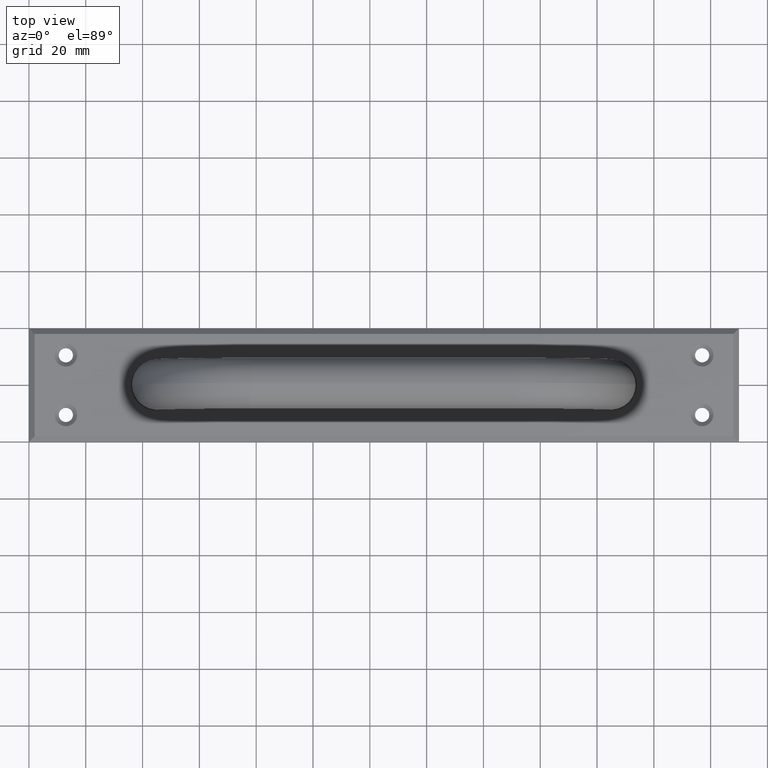
[diagram: clean part render]
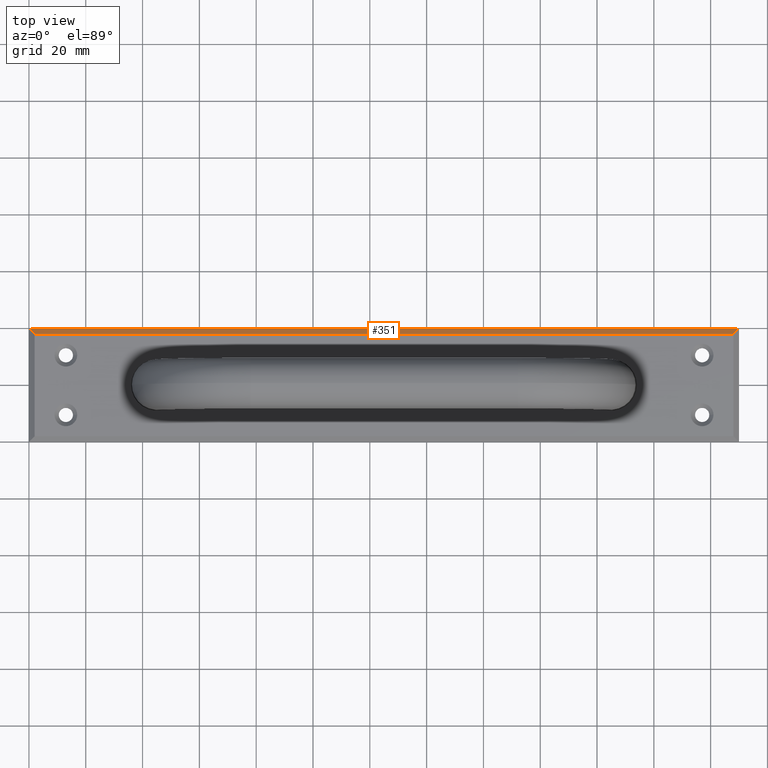
[diagram: same view with one face highlighted and labeled with its STEP entity id]
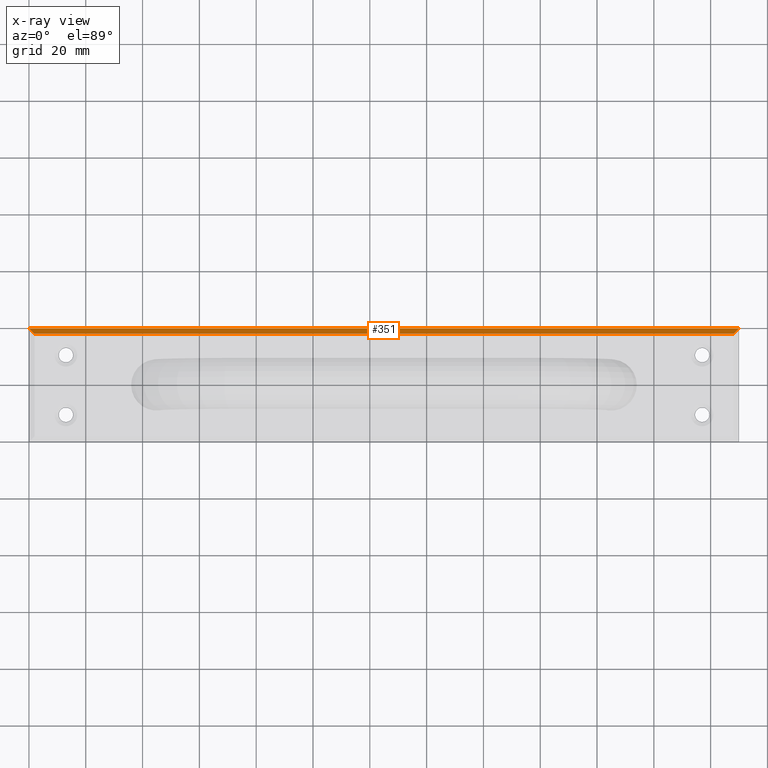
[diagram: x-ray of the same camera — body ghosted, the highlighted face saturated]
A machine part, top view. The second image highlights one B-rep face of the part: STEP entity #351.
The next image is the same camera in x-ray: the body ghosted, the highlighted face saturated — about 0% of this face is hidden behind the body in this view.
In plain terms, the highlighted planar face has unit normal (0, 0.7071, 0.7071).
Its self-contained STEP definition (entity closure, byte-faithful):
#17=LINE('',#559,#37);
#21=LINE('',#566,#41);
#24=LINE('',#573,#44);
#32=LINE('',#588,#52);
#37=VECTOR('',#466,3.46410161513776);
#41=VECTOR('',#472,246.);
#44=VECTOR('',#479,3.46410161513775);
#52=VECTOR('',#493,250.);
#61=PLANE('',#394);
#113=FACE_OUTER_BOUND('',#155,.T.);
#155=EDGE_LOOP('',(#305,#306,#307,#308));
#201=VERTEX_POINT('',#556);
#202=VERTEX_POINT('',#558);
#204=VERTEX_POINT('',#564);
#206=VERTEX_POINT('',#572);
#231=EDGE_CURVE('',#201,#202,#17,.T.);
#235=EDGE_CURVE('',#201,#204,#21,.T.);
#238=EDGE_CURVE('',#206,#204,#24,.T.);
#246=EDGE_CURVE('',#206,#202,#32,.T.);
#305=ORIENTED_EDGE('',*,*,#231,.F.);
#306=ORIENTED_EDGE('',*,*,#235,.T.);
#307=ORIENTED_EDGE('',*,*,#238,.F.);
#308=ORIENTED_EDGE('',*,*,#246,.T.);
#351=ADVANCED_FACE('',(#113),#61,.T.);
#394=AXIS2_PLACEMENT_3D('',#587,#491,#492);
#466=DIRECTION('',(-0.577350269189624,0.577350269189627,-0.577350269189626));
#472=DIRECTION('',(1.,-1.59872115546023E-16,0.));
#479=DIRECTION('',(-0.577350269189624,-0.577350269189628,0.577350269189626));
#491=DIRECTION('center_axis',(1.13046657025232E-16,0.707106781186546,0.707106781186549));
#492=DIRECTION('ref_axis',(1.,0.,-1.55431223447522E-16));
#493=DIRECTION('',(-1.,1.59872115546023E-16,0.));
#556=CARTESIAN_POINT('',(1.99999999999999,38.,3.));
#558=CARTESIAN_POINT('',(-1.47019513961341E-14,40.,1.));
#559=CARTESIAN_POINT('',(33.5833333333332,6.41666666666667,34.5833333333333));
#564=CARTESIAN_POINT('',(248.,38.,3.));
#566=CARTESIAN_POINT('',(187.5,38.,3.));
#572=CARTESIAN_POINT('',(250.,40.,1.));
#573=CARTESIAN_POINT('',(233.916666666667,23.9166666666666,17.0833333333333));
#587=CARTESIAN_POINT('Origin',(187.5,39.,2.));
#588=CARTESIAN_POINT('',(187.5,40.,1.));